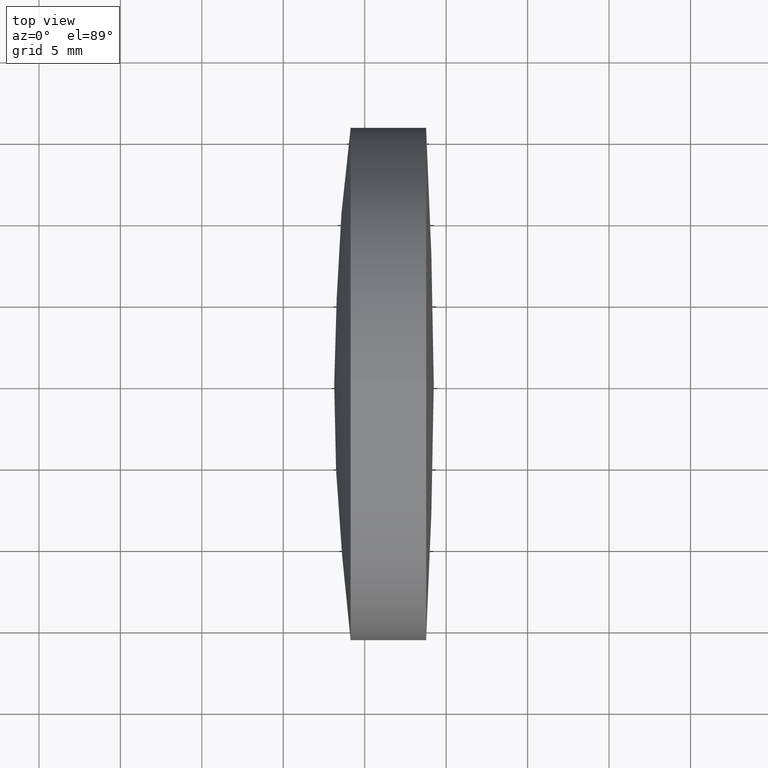
[diagram: clean part render]
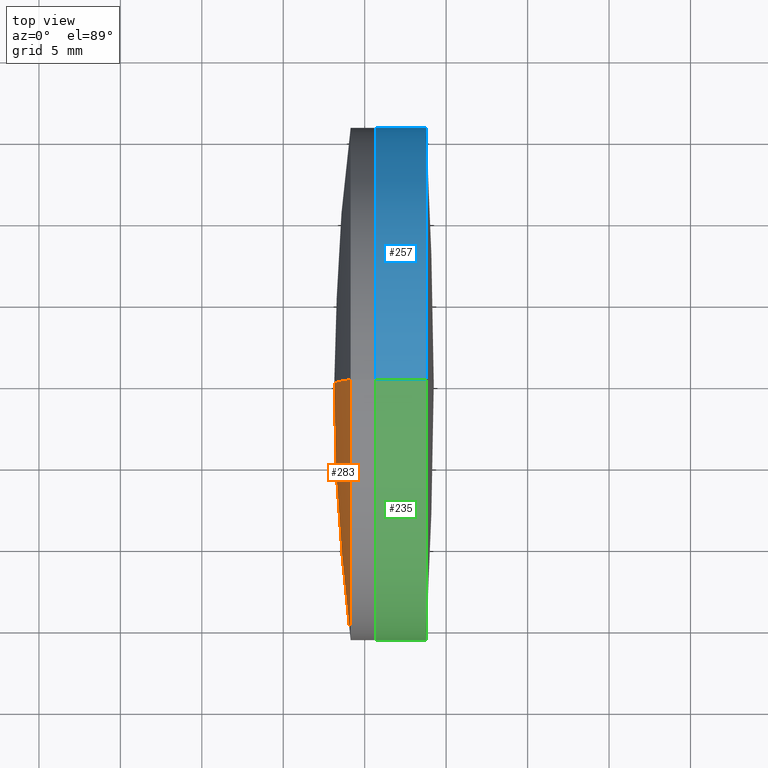
[diagram: same view with three faces highlighted in distinct colors, each labeled with its STEP entity id]
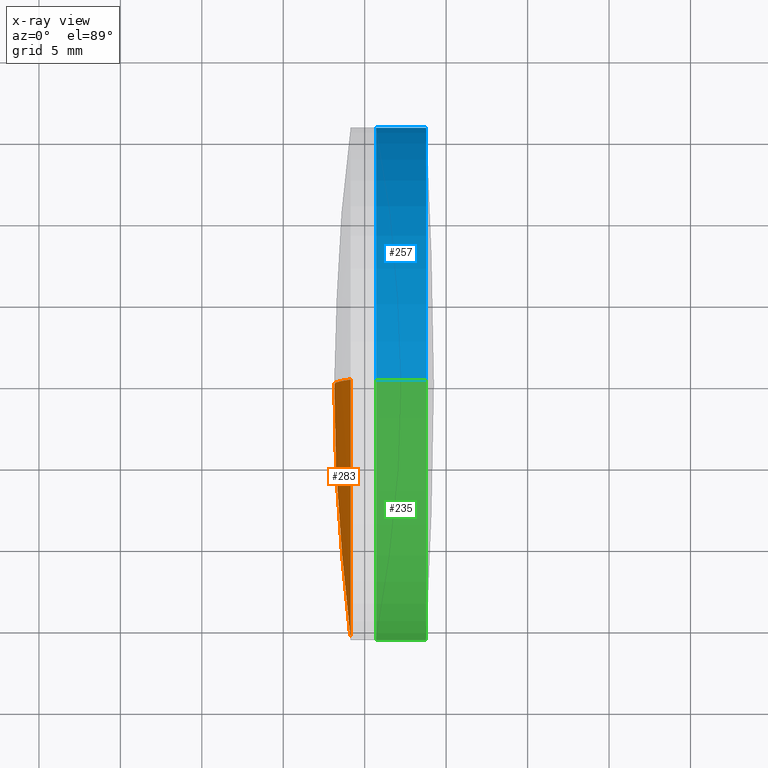
[diagram: x-ray of the same camera — body ghosted, the three highlighted faces saturated]
A machine part, top view with three faces highlighted in distinct colors.
The next image is the same camera in x-ray (body ghosted, the three faces saturated) — at least one of them is partly hidden behind the body in this view.
Their STEP definitions:

[orange] entity #283 — the highlighted spherical surface has radius 123.689 mm.
#2 = VERTEX_POINT ( 'NONE', #147 ) ;
#3 = EDGE_LOOP ( 'NONE', ( #88, #239, #39 ) ) ;
#16 = DIRECTION ( 'NONE',  ( 0.0000000000000000000, 0.0000000000000000000, 1.000000000000000000 ) ) ;
#18 = EDGE_CURVE ( 'NONE', #2, #87, #149, .T. ) ;
#19 = DIRECTION ( 'NONE',  ( -1.000000000000000000, -0.0000000000000000000, -0.0000000000000000000 ) ) ;
#35 = DIRECTION ( 'NONE',  ( -0.0000000000000000000, -1.000000000000000000, -0.0000000000000000000 ) ) ;
#39 = ORIENTED_EDGE ( 'NONE', *, *, #69, .F. ) ;
#46 = CIRCLE ( 'NONE', #276, 123.6890000000000100 ) ;
#69 = EDGE_CURVE ( 'NONE', #2, #328, #46, .T. ) ;
#87 = VERTEX_POINT ( 'NONE', #140 ) ;
#88 = ORIENTED_EDGE ( 'NONE', *, *, #18, .T. ) ;
#99 = AXIS2_PLACEMENT_3D ( 'NONE', #229, #35, #198 ) ;
#110 = DIRECTION ( 'NONE',  ( 0.0000000000000000000, -1.000000000000000000, -1.224646799147353200E-016 ) ) ;
#118 = SPHERICAL_SURFACE ( 'NONE', #99, 123.6890000000000100 ) ;
#120 = DIRECTION ( 'NONE',  ( 0.0000000000000000000, 0.0000000000000000000, 1.000000000000000000 ) ) ;
#131 = AXIS2_PLACEMENT_3D ( 'NONE', #209, #19, #16 ) ;
#140 = CARTESIAN_POINT ( 'NONE',  ( 259.1360932977123100, -1.928818708657084900E-015, 15.75000000000002800 ) ) ;
#147 = CARTESIAN_POINT ( 'NONE',  ( 259.1360932977123100, 0.0000000000000000000, -15.75000000000002800 ) ) ;
#149 = CIRCLE ( 'NONE', #131, 15.75000000000000000 ) ;
#152 = FACE_OUTER_BOUND ( 'NONE', #3, .T. ) ;
#161 = AXIS2_PLACEMENT_3D ( 'NONE', #173, #110, #334 ) ;
#167 = CARTESIAN_POINT ( 'NONE',  ( 381.8182281870269900, 0.0000000000000000000, 1.385258890006694100E-016 ) ) ;
#173 = CARTESIAN_POINT ( 'NONE',  ( 381.8182281870269900, 0.0000000000000000000, 1.385258890006694100E-016 ) ) ;
#198 = DIRECTION ( 'NONE',  ( 0.0000000000000000000, 0.0000000000000000000, -1.000000000000000000 ) ) ;
#209 = CARTESIAN_POINT ( 'NONE',  ( 259.1360932977123100, 0.0000000000000000000, 0.0000000000000000000 ) ) ;
#229 = CARTESIAN_POINT ( 'NONE',  ( 381.8182281870269900, 0.0000000000000000000, 1.385258890006694100E-016 ) ) ;
#239 = ORIENTED_EDGE ( 'NONE', *, *, #241, .T. ) ;
#240 = CIRCLE ( 'NONE', #161, 123.6890000000000100 ) ;
#241 = EDGE_CURVE ( 'NONE', #87, #328, #240, .T. ) ;
#246 = CARTESIAN_POINT ( 'NONE',  ( 258.1292281870269700, 0.0000000000000000000, -7.435241007986179600E-015 ) ) ;
#276 = AXIS2_PLACEMENT_3D ( 'NONE', #167, #292, #120 ) ;
#283 = ADVANCED_FACE ( 'NONE', ( #152 ), #118, .T. ) ;
#292 = DIRECTION ( 'NONE',  ( 0.0000000000000000000, 1.000000000000000000, -0.0000000000000000000 ) ) ;
#328 = VERTEX_POINT ( 'NONE', #246 ) ;
#334 = DIRECTION ( 'NONE',  ( 0.0000000000000000000, 1.224646799147353200E-016, -1.000000000000000000 ) ) ;

[blue] entity #257 — the highlighted cylindrical surface (partial cylindrical patch) has radius 15.75 mm, axis along (-1, -0, -0).
#5 = CARTESIAN_POINT ( 'NONE',  ( -0.5519199926577972300, 0.0000000000000000000, 15.74999999999999300 ) ) ;
#17 = CARTESIAN_POINT ( 'NONE',  ( -0.5519199926577972300, 1.928818708657080600E-015, -15.74999999999999300 ) ) ;
#28 = DIRECTION ( 'NONE',  ( -1.000000000000000000, -0.0000000000000000000, -0.0000000000000000000 ) ) ;
#31 = VERTEX_POINT ( 'NONE', #293 ) ;
#32 = LINE ( 'NONE', #17, #125 ) ;
#40 = VERTEX_POINT ( 'NONE', #47 ) ;
#42 = VECTOR ( 'NONE', #182, 1000.000000000000000 ) ;
#47 = CARTESIAN_POINT ( 'NONE',  ( 260.6997343511442300, 1.928818708657080600E-015, -15.74999999999999300 ) ) ;
#48 = CARTESIAN_POINT ( 'NONE',  ( -0.5519199926577972300, 0.0000000000000000000, 0.0000000000000000000 ) ) ;
#60 = DIRECTION ( 'NONE',  ( 0.0000000000000000000, 0.0000000000000000000, 1.000000000000000000 ) ) ;
#61 = AXIS2_PLACEMENT_3D ( 'NONE', #122, #261, #60 ) ;
#64 = DIRECTION ( 'NONE',  ( -1.000000000000000000, -0.0000000000000000000, -0.0000000000000000000 ) ) ;
#82 = CIRCLE ( 'NONE', #304, 15.75000000000004300 ) ;
#83 = ORIENTED_EDGE ( 'NONE', *, *, #280, .T. ) ;
#122 = CARTESIAN_POINT ( 'NONE',  ( 263.7689726445872200, 0.0000000000000000000, 0.0000000000000000000 ) ) ;
#125 = VECTOR ( 'NONE', #245, 1000.000000000000000 ) ;
#143 = EDGE_CURVE ( 'NONE', #180, #40, #82, .T. ) ;
#148 = VERTEX_POINT ( 'NONE', #307 ) ;
#165 = CIRCLE ( 'NONE', #61, 15.74999999999994100 ) ;
#180 = VERTEX_POINT ( 'NONE', #213 ) ;
#182 = DIRECTION ( 'NONE',  ( -1.000000000000000000, -0.0000000000000000000, -0.0000000000000000000 ) ) ;
#213 = CARTESIAN_POINT ( 'NONE',  ( 260.6997343511442300, 0.0000000000000000000, 15.74999999999999300 ) ) ;
#219 = EDGE_LOOP ( 'NONE', ( #232, #83, #325, #303 ) ) ;
#220 = CYLINDRICAL_SURFACE ( 'NONE', #310, 15.74999999999999300 ) ;
#232 = ORIENTED_EDGE ( 'NONE', *, *, #267, .T. ) ;
#245 = DIRECTION ( 'NONE',  ( -1.000000000000000000, -0.0000000000000000000, -0.0000000000000000000 ) ) ;
#256 = DIRECTION ( 'NONE',  ( 0.0000000000000000000, 0.0000000000000000000, 1.000000000000000000 ) ) ;
#257 = ADVANCED_FACE ( 'NONE', ( #301 ), #220, .T. ) ;
#261 = DIRECTION ( 'NONE',  ( -1.000000000000000000, -0.0000000000000000000, -0.0000000000000000000 ) ) ;
#267 = EDGE_CURVE ( 'NONE', #31, #148, #165, .T. ) ;
#280 = EDGE_CURVE ( 'NONE', #148, #40, #32, .T. ) ;
#285 = DIRECTION ( 'NONE',  ( 0.0000000000000000000, 0.0000000000000000000, 1.000000000000000000 ) ) ;
#286 = EDGE_CURVE ( 'NONE', #31, #180, #295, .T. ) ;
#293 = CARTESIAN_POINT ( 'NONE',  ( 263.7689726445872200, 0.0000000000000000000, 15.74999999999994100 ) ) ;
#295 = LINE ( 'NONE', #5, #42 ) ;
#301 = FACE_OUTER_BOUND ( 'NONE', #219, .T. ) ;
#303 = ORIENTED_EDGE ( 'NONE', *, *, #286, .F. ) ;
#304 = AXIS2_PLACEMENT_3D ( 'NONE', #327, #28, #285 ) ;
#307 = CARTESIAN_POINT ( 'NONE',  ( 263.7689726445872200, 1.928818708657077400E-015, -15.74999999999994100 ) ) ;
#310 = AXIS2_PLACEMENT_3D ( 'NONE', #48, #64, #256 ) ;
#325 = ORIENTED_EDGE ( 'NONE', *, *, #143, .F. ) ;
#327 = CARTESIAN_POINT ( 'NONE',  ( 260.6997343511442300, 0.0000000000000000000, 0.0000000000000000000 ) ) ;

[green] entity #235 — the highlighted cylindrical surface (partial cylindrical patch) has radius 15.75 mm, axis along (-1, -0, -0).
#5 = CARTESIAN_POINT ( 'NONE',  ( -0.5519199926577972300, 0.0000000000000000000, 15.74999999999999300 ) ) ;
#17 = CARTESIAN_POINT ( 'NONE',  ( -0.5519199926577972300, 1.928818708657080600E-015, -15.74999999999999300 ) ) ;
#31 = VERTEX_POINT ( 'NONE', #293 ) ;
#32 = LINE ( 'NONE', #17, #125 ) ;
#37 = DIRECTION ( 'NONE',  ( -1.000000000000000000, -0.0000000000000000000, -0.0000000000000000000 ) ) ;
#40 = VERTEX_POINT ( 'NONE', #47 ) ;
#42 = VECTOR ( 'NONE', #182, 1000.000000000000000 ) ;
#47 = CARTESIAN_POINT ( 'NONE',  ( 260.6997343511442300, 1.928818708657080600E-015, -15.74999999999999300 ) ) ;
#49 = CYLINDRICAL_SURFACE ( 'NONE', #204, 15.74999999999999300 ) ;
#62 = CARTESIAN_POINT ( 'NONE',  ( -0.5519199926577972300, 0.0000000000000000000, 0.0000000000000000000 ) ) ;
#65 = AXIS2_PLACEMENT_3D ( 'NONE', #124, #340, #345 ) ;
#73 = EDGE_CURVE ( 'NONE', #40, #180, #323, .T. ) ;
#78 = EDGE_CURVE ( 'NONE', #148, #31, #181, .T. ) ;
#119 = DIRECTION ( 'NONE',  ( -1.000000000000000000, -0.0000000000000000000, -0.0000000000000000000 ) ) ;
#124 = CARTESIAN_POINT ( 'NONE',  ( 260.6997343511442300, 0.0000000000000000000, 0.0000000000000000000 ) ) ;
#125 = VECTOR ( 'NONE', #245, 1000.000000000000000 ) ;
#146 = ORIENTED_EDGE ( 'NONE', *, *, #73, .F. ) ;
#148 = VERTEX_POINT ( 'NONE', #307 ) ;
#162 = EDGE_LOOP ( 'NONE', ( #243, #197, #335, #146 ) ) ;
#180 = VERTEX_POINT ( 'NONE', #213 ) ;
#181 = CIRCLE ( 'NONE', #271, 15.74999999999994100 ) ;
#182 = DIRECTION ( 'NONE',  ( -1.000000000000000000, -0.0000000000000000000, -0.0000000000000000000 ) ) ;
#197 = ORIENTED_EDGE ( 'NONE', *, *, #78, .T. ) ;
#204 = AXIS2_PLACEMENT_3D ( 'NONE', #62, #37, #234 ) ;
#213 = CARTESIAN_POINT ( 'NONE',  ( 260.6997343511442300, 0.0000000000000000000, 15.74999999999999300 ) ) ;
#234 = DIRECTION ( 'NONE',  ( 0.0000000000000000000, 0.0000000000000000000, 1.000000000000000000 ) ) ;
#235 = ADVANCED_FACE ( 'NONE', ( #254 ), #49, .T. ) ;
#243 = ORIENTED_EDGE ( 'NONE', *, *, #280, .F. ) ;
#245 = DIRECTION ( 'NONE',  ( -1.000000000000000000, -0.0000000000000000000, -0.0000000000000000000 ) ) ;
#254 = FACE_OUTER_BOUND ( 'NONE', #162, .T. ) ;
#271 = AXIS2_PLACEMENT_3D ( 'NONE', #290, #119, #315 ) ;
#280 = EDGE_CURVE ( 'NONE', #148, #40, #32, .T. ) ;
#286 = EDGE_CURVE ( 'NONE', #31, #180, #295, .T. ) ;
#290 = CARTESIAN_POINT ( 'NONE',  ( 263.7689726445872200, 0.0000000000000000000, 0.0000000000000000000 ) ) ;
#293 = CARTESIAN_POINT ( 'NONE',  ( 263.7689726445872200, 0.0000000000000000000, 15.74999999999994100 ) ) ;
#295 = LINE ( 'NONE', #5, #42 ) ;
#307 = CARTESIAN_POINT ( 'NONE',  ( 263.7689726445872200, 1.928818708657077400E-015, -15.74999999999994100 ) ) ;
#315 = DIRECTION ( 'NONE',  ( 0.0000000000000000000, 0.0000000000000000000, 1.000000000000000000 ) ) ;
#323 = CIRCLE ( 'NONE', #65, 15.75000000000004300 ) ;
#335 = ORIENTED_EDGE ( 'NONE', *, *, #286, .T. ) ;
#340 = DIRECTION ( 'NONE',  ( -1.000000000000000000, -0.0000000000000000000, -0.0000000000000000000 ) ) ;
#345 = DIRECTION ( 'NONE',  ( 0.0000000000000000000, 0.0000000000000000000, 1.000000000000000000 ) ) ;